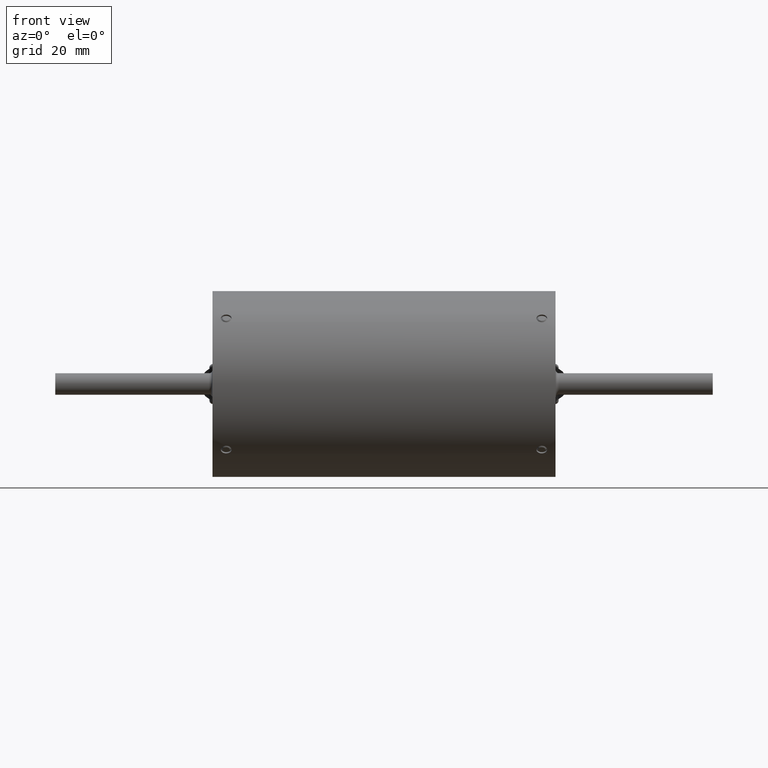
[diagram: clean part render]
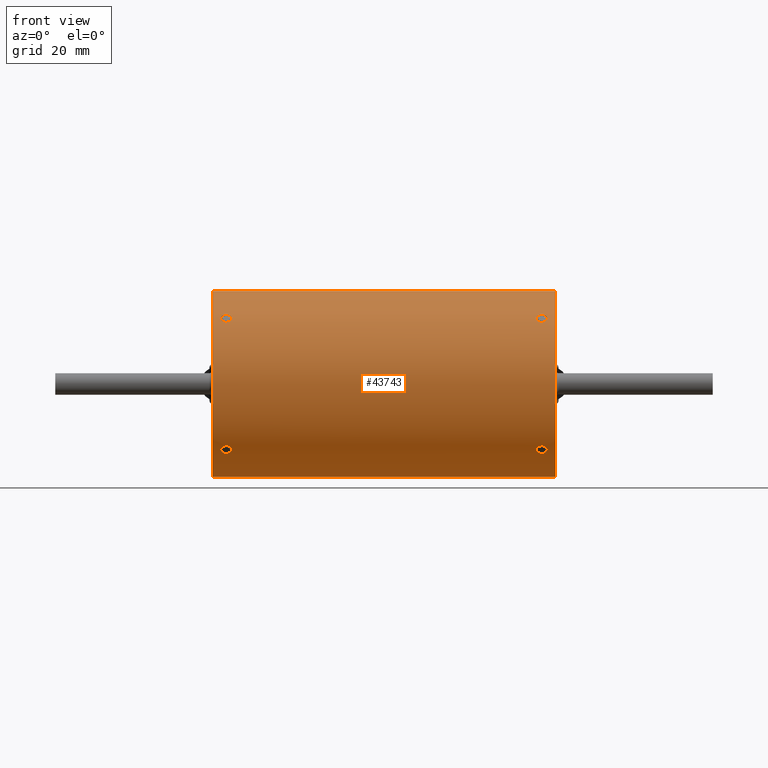
[diagram: same view with one face highlighted and labeled with its STEP entity id]
A machine part, front view. The second image highlights one B-rep face of the part: STEP entity #43743.
In plain terms, the highlighted cylindrical surface (bore or boss wall) has radius 20.6375 mm, axis along (-1, -0, -0).
Its self-contained STEP definition (entity closure, byte-faithful):
#162 = DIRECTION ( 'NONE',  ( 0.0000000000000000000, 0.0000000000000000000, 1.000000000000000000 ) ) ;
#361 = CARTESIAN_POINT ( 'NONE',  ( 2.595753959625226600, 0.8124997258721402500, 0.007369463581282807200 ) ) ;
#650 = CARTESIAN_POINT ( 'NONE',  ( 2.644579631145282900, 0.8105764993397319700, -0.05587942431614765400 ) ) ;
#930 = CARTESIAN_POINT ( 'NONE',  ( 2.708246298324295900, 0.8124997437302681200, -0.003768054466611750800 ) ) ;
#1365 = CARTESIAN_POINT ( 'NONE',  ( -0.1701349937785589800, 0.8107462396933474700, -0.05337404081643423700 ) ) ;
#1938 = CARTESIAN_POINT ( 'NONE',  ( 2.750000000000000000, 0.0000000000000000000, 7.764378988395785700E-030 ) ) ;
#2032 = CARTESIAN_POINT ( 'NONE',  ( -0.1761277402550023900, 0.5832112790651347000, 0.5657329252239211600 ) ) ;
#2098 = CARTESIAN_POINT ( 'NONE',  ( -0.1299999999999999800, -0.6070293364834783400, 0.5400663243051062600 ) ) ;
#2317 = CARTESIAN_POINT ( 'NONE',  ( -0.08389611841930932900, 0.5832719045279103300, 0.5656703463929490000 ) ) ;
#2377 = CARTESIAN_POINT ( 'NONE',  ( 2.629999999999999900, 0.6070293364834821200, -0.5400663243051018200 ) ) ;
#3036 = CARTESIAN_POINT ( 'NONE',  ( 2.583897500763709500, -0.5832636695510399200, 0.5656785453590068600 ) ) ;
#3309 = CARTESIAN_POINT ( 'NONE',  ( 2.659079301247605300, -0.5471261665832846100, 0.6006898211597697700 ) ) ;
#3364 = CARTESIAN_POINT ( 'NONE',  ( 2.623742239736963200, 0.6070293364834820100, -0.5400663243051017100 ) ) ;
#3535 = VERTEX_POINT ( 'NONE', #2098 ) ;
#3545 = EDGE_CURVE ( 'NONE', #66155, #66155, #55518, .T. ) ;
#3603 = CARTESIAN_POINT ( 'NONE',  ( 2.629999999999999400, -0.6070293364834783400, 0.5400663243051061500 ) ) ;
#3656 = CARTESIAN_POINT ( 'NONE',  ( 2.583897500763709500, 0.5832636695510435800, -0.5656785453590026400 ) ) ;
#3818 = CARTESIAN_POINT ( 'NONE',  ( 2.592148420942989300, 0.5535793970949891600, 0.5947480229792374600 ) ) ;
#3944 = CARTESIAN_POINT ( 'NONE',  ( 2.659079301247605300, 0.5471261665832891600, -0.6006898211597661000 ) ) ;
#4005 = ORIENTED_EDGE ( 'NONE', *, *, #51884, .T. ) ;
#4115 = CARTESIAN_POINT ( 'NONE',  ( 2.642393875219595200, 0.6062078163839945700, 0.5409934422598049500 ) ) ;
#4230 = CARTESIAN_POINT ( 'NONE',  ( 2.629999999999999000, 0.6070293364834821200, -0.5400663243051018200 ) ) ;
#4391 = CARTESIAN_POINT ( 'NONE',  ( 2.642474456311197300, 0.5410097238166782200, 0.6061933244686390500 ) ) ;
#4471 = CARTESIAN_POINT ( 'NONE',  ( -0.1300000000000000000, 0.6070293364834821200, -0.5400663243051018200 ) ) ;
#4515 = CARTESIAN_POINT ( 'NONE',  ( 2.583872259744999700, -0.5832112790651345900, -0.5657329252239216000 ) ) ;
#4567 = CARTESIAN_POINT ( 'NONE',  ( -0.1713864559505219600, -0.5574440097199302400, 0.5911389978157182100 ) ) ;
#4766 = CARTESIAN_POINT ( 'NONE',  ( -0.1538695845530263200, 0.5445343109252623900, -0.6030292749085092200 ) ) ;
#4807 = CARTESIAN_POINT ( 'NONE',  ( 2.676103881580690600, -0.5832719045279105600, -0.5656703463929486600 ) ) ;
#4868 = CARTESIAN_POINT ( 'NONE',  ( -0.08265626676958068300, -0.5700723275271159000, 0.5789756754191050000 ) ) ;
#5053 = CARTESIAN_POINT ( 'NONE',  ( -0.08861633935093166100, 0.5911440358451716100, -0.5574387563723652800 ) ) ;
#5525 = EDGE_LOOP ( 'NONE', ( #31936 ) ) ;
#6412 = CARTESIAN_POINT ( 'NONE',  ( -0.1713864559505219900, -0.5911389978157202100, -0.5574440097199282500 ) ) ;
#6716 = CARTESIAN_POINT ( 'NONE',  ( -0.08265626676958071100, -0.5789756754191068800, -0.5700723275271137900 ) ) ;
#6801 = CARTESIAN_POINT ( 'NONE',  ( 2.651999999999999200, 0.8105505459254223100, 0.05625000000000031400 ) ) ;
#7077 = CARTESIAN_POINT ( 'NONE',  ( 2.596113304631768600, 0.8124746135288695200, -0.007366747040115401300 ) ) ;
#7361 = CARTESIAN_POINT ( 'NONE',  ( 2.659322480166834700, 0.8105503626171515200, -0.05625264143339565200 ) ) ;
#7635 = CARTESIAN_POINT ( 'NONE',  ( 2.706801845933591200, 0.8123961534121482100, 0.01467271644329746200 ) ) ;
#8606 = DIRECTION ( 'NONE',  ( 0.0000000000000000000, 0.0000000000000000000, -1.000000000000000000 ) ) ;
#8607 = CARTESIAN_POINT ( 'NONE',  ( -0.1520000000000001900, 0.8105505459254223100, 0.05625000000000007800 ) ) ;
#8707 = CARTESIAN_POINT ( 'NONE',  ( -0.1679155668264365200, 0.5947022263198601400, 0.5536290274329783700 ) ) ;
#8971 = CARTESIAN_POINT ( 'NONE',  ( -0.08264378050201187700, 0.5701397495996897200, 0.5789092824144340700 ) ) ;
#9637 = CARTESIAN_POINT ( 'NONE',  ( 2.582646694254766100, -0.5701742948643557800, 0.5788744970100936400 ) ) ;
#9930 = CARTESIAN_POINT ( 'NONE',  ( 2.671344120360224000, -0.5573911578048654800, 0.5911887622417105700 ) ) ;
#10026 = FACE_BOUND ( 'NONE', #48580, .T. ) ;
#10278 = CARTESIAN_POINT ( 'NONE',  ( 2.582646694254765700, 0.5701742948643600000, -0.5788744970100895300 ) ) ;
#10449 = CARTESIAN_POINT ( 'NONE',  ( 2.583897500763709500, 0.5656785453590087400, 0.5832636695510378100 ) ) ;
#10561 = CARTESIAN_POINT ( 'NONE',  ( 2.671344120360224000, 0.5573911578048699200, -0.5911887622417069100 ) ) ;
#10718 = CARTESIAN_POINT ( 'NONE',  ( 2.659079301247605300, 0.6006898211597718800, 0.5471261665832827200 ) ) ;
#10885 = CARTESIAN_POINT ( 'NONE',  ( -0.1299999999999999800, -0.6070293364834783400, 0.5400663243051061500 ) ) ;
#10999 = CARTESIAN_POINT ( 'NONE',  ( 2.629999999999999000, 0.5400663243051084800, 0.6070293364834764600 ) ) ;
#11077 = CARTESIAN_POINT ( 'NONE',  ( -0.1538659023265115100, 0.6030303882540711800, -0.5445330723113459600 ) ) ;
#11126 = CARTESIAN_POINT ( 'NONE',  ( 2.592084433173565300, -0.5947022263198598100, -0.5536290274329788200 ) ) ;
#11178 = CARTESIAN_POINT ( 'NONE',  ( -0.1590800102466981000, -0.5471174658890801700, 0.6006981908789930100 ) ) ;
#11376 = CARTESIAN_POINT ( 'NONE',  ( -0.1361976685772201800, 0.5400679837262955000, -0.6070278601174199400 ) ) ;
#11420 = CARTESIAN_POINT ( 'NONE',  ( 2.677356219497988300, -0.5701397495996899400, -0.5789092824144336200 ) ) ;
#11475 = CARTESIAN_POINT ( 'NONE',  ( -0.08386831478681411300, -0.5832043186508149000, 0.5657401885391611900 ) ) ;
#11642 = CARTESIAN_POINT ( 'NONE',  ( -0.1008581011056976500, 0.6006580577466481600, -0.5471611322476539500 ) ) ;
#12680 = CARTESIAN_POINT ( 'NONE',  ( -0.1300000000000000000, -0.5400663243051082600, -0.6070293364834765700 ) ) ;
#12967 = CARTESIAN_POINT ( 'NONE',  ( -0.1590800102466981600, -0.6006981908789945600, -0.5471174658890782800 ) ) ;
#13251 = CARTESIAN_POINT ( 'NONE',  ( -0.08386831478681407200, -0.5657401885391630800, -0.5832043186508130100 ) ) ;
#13338 = CARTESIAN_POINT ( 'NONE',  ( 2.637437192628433500, 0.8106733864475287300, 0.05445570389347583600 ) ) ;
#13629 = CARTESIAN_POINT ( 'NONE',  ( 2.598610448825378500, 0.8123057654045428000, -0.01808869215161151800 ) ) ;
#13920 = CARTESIAN_POINT ( 'NONE',  ( 2.680266776396474300, 0.8110150316726084700, -0.04918069826484095000 ) ) ;
#14203 = CARTESIAN_POINT ( 'NONE',  ( 2.700846275161451300, 0.8120184791651857700, 0.02813534715328226300 ) ) ;
#15311 = CARTESIAN_POINT ( 'NONE',  ( -0.1538695845530263500, 0.6030292749085148800, 0.5445343109252561700 ) ) ;
#15588 = CARTESIAN_POINT ( 'NONE',  ( -0.08861633935093166100, 0.5574387563723716100, 0.5911440358451658400 ) ) ;
#16218 = CARTESIAN_POINT ( 'NONE',  ( -0.1299999999999999800, 0.5400663243051082600, 0.6070293364834764600 ) ) ;
#16270 = CARTESIAN_POINT ( 'NONE',  ( 2.588613544049476600, -0.5574440097199303600, 0.5911389978157178800 ) ) ;
#16551 = CARTESIAN_POINT ( 'NONE',  ( 2.677343733230420400, -0.5700723275271155600, 0.5789756754191048800 ) ) ;
#16880 = CARTESIAN_POINT ( 'NONE',  ( 2.588613544049477100, 0.5574440097199344600, -0.5911389978157140000 ) ) ;
#16900 = VERTEX_POINT ( 'NONE', #74426 ) ;
#17038 = CARTESIAN_POINT ( 'NONE',  ( 2.582646694254765700, 0.5788744970100957500, 0.5701742948643536700 ) ) ;
#17159 = CARTESIAN_POINT ( 'NONE',  ( 2.677343733230420400, 0.5700723275271196700, -0.5789756754191010000 ) ) ;
#17320 = CARTESIAN_POINT ( 'NONE',  ( 2.671344120360224000, 0.5911887622417125700, 0.5573911578048637000 ) ) ;
#17477 = CARTESIAN_POINT ( 'NONE',  ( -0.1423981732567065300, -0.6062105857736703700, 0.5409904266201329700 ) ) ;
#17659 = CARTESIAN_POINT ( 'NONE',  ( -0.1678515790570105400, 0.5947480229792435600, -0.5535793970949830500 ) ) ;
#17698 = CARTESIAN_POINT ( 'NONE',  ( 2.606130415446974000, -0.6030292749085148800, -0.5445343109252561700 ) ) ;
#17748 = CARTESIAN_POINT ( 'NONE',  ( -0.1423962694957802400, -0.5409897374308964000, 0.6062112059059798800 ) ) ;
#17929 = CARTESIAN_POINT ( 'NONE',  ( -0.1176061247804051500, 0.5409934422598113900, -0.6062078163839888000 ) ) ;
#17970 = CARTESIAN_POINT ( 'NONE',  ( 2.671383660649068400, -0.5574387563723716100, -0.5911440358451655100 ) ) ;
#18028 = CARTESIAN_POINT ( 'NONE',  ( -0.09212568097719467400, -0.5947283477971482300, 0.5536005774066576900 ) ) ;
#18202 = CARTESIAN_POINT ( 'NONE',  ( -0.1175255436888030800, 0.6061933244686444900, -0.5410097238166716700 ) ) ;
#19249 = CARTESIAN_POINT ( 'NONE',  ( -0.1423981732567064500, -0.5409904266201350800, -0.6062105857736681500 ) ) ;
#19404 = CIRCLE ( 'NONE', #69259, 0.8125000000000000000 ) ;
#19535 = CARTESIAN_POINT ( 'NONE',  ( -0.1423962694957802700, -0.6062112059059816500, -0.5409897374308945100 ) ) ;
#19836 = CARTESIAN_POINT ( 'NONE',  ( -0.09212568097719466000, -0.5536005774066595800, -0.5947283477971465600 ) ) ;
#19923 = CARTESIAN_POINT ( 'NONE',  ( 2.627052940950715500, 0.8109272177565431900, 0.05054996625941546300 ) ) ;
#19925 = VERTEX_POINT ( 'NONE', #16218 ) ;
#20208 = CARTESIAN_POINT ( 'NONE',  ( 2.603187752026922200, 0.8120164373367649800, -0.02819319159906399200 ) ) ;
#20505 = CARTESIAN_POINT ( 'NONE',  ( 2.694331751986395900, 0.8116510606599923700, -0.03722274126212533200 ) ) ;
#20790 = CARTESIAN_POINT ( 'NONE',  ( 2.694399262698429000, 0.8116545925775892100, 0.03714610869399726000 ) ) ;
#21107 = CARTESIAN_POINT ( 'NONE',  ( 2.629999999999999900, 0.5400663243051082600, 0.6070293364834764600 ) ) ;
#21605 = CARTESIAN_POINT ( 'NONE',  ( -0.1538659023265114800, 0.5445330723113522800, 0.6030303882540656300 ) ) ;
#21884 = CARTESIAN_POINT ( 'NONE',  ( -0.1361976685772201000, 0.6070278601174249300, 0.5400679837262889500 ) ) ;
#22170 = CARTESIAN_POINT ( 'NONE',  ( -0.1008581011056976800, 0.5471611322476601600, 0.6006580577466423800 ) ) ;
#22458 = B_SPLINE_CURVE_WITH_KNOTS ( 'NONE', 3,
 ( #54465, #60712, #60986, #21605, #67543, #28219, #74092, #34866, #80603, #41489, #2032, #48098, #8707, #54736, #15311, #61254, #21884, #67821, #28499, #74366, #35143, #80880, #41753, #2317, #48393, #8971, #55020, #15588, #61541, #22170, #68104, #28785, #74646, #35419 ),
 .UNSPECIFIED., .T., .F.,
 ( 4, 2, 2, 2, 2, 2, 2, 2, 2, 2, 2, 2, 2, 2, 2, 2, 4 ),
 ( 0.0000000000000000000, 0.0004700654975709993600, 0.0009401309951419987100, 0.001410196492712998100, 0.001880261990283997400, 0.002350327487854996600, 0.002820392985425996100, 0.003290458482996995300, 0.003760523980567994800, 0.004230589478138995300, 0.004700654975709996600, 0.005170720473280997900, 0.005640785970851998300, 0.006110851468422999700, 0.006580916965994001000, 0.007050982463565001400, 0.007521047961136002700 ),
 .UNSPECIFIED. ) ;
#22849 = CARTESIAN_POINT ( 'NONE',  ( 2.600919989753302200, -0.5471174658890800600, 0.6006981908789926800 ) ) ;
#23148 = CARTESIAN_POINT ( 'NONE',  ( 2.676131685213186900, -0.5832043186508143500, 0.5657401885391613000 ) ) ;
#23203 = CARTESIAN_POINT ( 'NONE',  ( 2.629999999999999000, 0.6070293364834821200, -0.5400663243051018200 ) ) ;
#23502 = CARTESIAN_POINT ( 'NONE',  ( 2.600919989753302200, 0.5471174658890845000, -0.6006981908789886800 ) ) ;
#23621 = B_SPLINE_CURVE_WITH_KNOTS ( 'NONE', 3,
 ( #23203, #3364, #29828, #75643, #36436, #82202, #43056, #3656, #49716, #10278, #56328, #16880, #62833, #23502, #69361, #30100, #75929, #36728, #82503, #43345, #3944, #50003, #10561, #56620, #17159, #63112, #23793, #69623, #30404, #76196, #37011, #82799, #43628, #4230 ),
 .UNSPECIFIED., .T., .F.,
 ( 4, 2, 2, 2, 2, 2, 2, 2, 2, 2, 2, 2, 2, 2, 2, 2, 4 ),
 ( 0.0000000000000000000, 0.0004700654975709995700, 0.0009401309951419991500, 0.001410196492712998700, 0.001880261990283998300, 0.002350327487854997900, 0.002820392985425997400, 0.003290458482996997000, 0.003760523980567996600, 0.004230589478138996200, 0.004700654975709995700, 0.005170720473280995300, 0.005640785970851994900, 0.006110851468422994400, 0.006580916965993994000, 0.007050982463564993600, 0.007521047961135993200 ),
 .UNSPECIFIED. ) ;
#23678 = CARTESIAN_POINT ( 'NONE',  ( 2.588613544049477100, 0.5911389978157197700, 0.5574440097199283600 ) ) ;
#23717 = ORIENTED_EDGE ( 'NONE', *, *, #74710, .T. ) ;
#23745 = CARTESIAN_POINT ( 'NONE',  ( -0.1362577602630357400, 0.6070293364834821200, -0.5400663243051018200 ) ) ;
#23767 = AXIS2_PLACEMENT_3D ( 'NONE', #1938, #48006, #8606 ) ;
#23793 = CARTESIAN_POINT ( 'NONE',  ( 2.676131685213186900, 0.5832043186508184500, -0.5657401885391572000 ) ) ;
#23956 = CARTESIAN_POINT ( 'NONE',  ( 2.677343733230420400, 0.5789756754191067700, 0.5700723275271135600 ) ) ;
#24062 = CARTESIAN_POINT ( 'NONE',  ( 2.606134097673487000, -0.5445330723113521700, -0.6030303882540654100 ) ) ;
#24117 = CARTESIAN_POINT ( 'NONE',  ( -0.1591177061275198000, -0.6006702292020033000, 0.5471477272877738300 ) ) ;
#24299 = CARTESIAN_POINT ( 'NONE',  ( -0.1761024992362898200, 0.5832636695510438100, -0.5656785453590028600 ) ) ;
#24342 = CARTESIAN_POINT ( 'NONE',  ( 2.623802331422779000, -0.6070278601174252700, -0.5400679837262891700 ) ) ;
#24394 = CARTESIAN_POINT ( 'NONE',  ( -0.1238362586174798900, -0.5400646694321485900, 0.6070308088030326200 ) ) ;
#24581 = CARTESIAN_POINT ( 'NONE',  ( -0.1009206987523942800, 0.5471261665832890500, -0.6006898211597657700 ) ) ;
#24624 = CARTESIAN_POINT ( 'NONE',  ( 2.659141898894302100, -0.5471611322476602800, -0.6006580577466419400 ) ) ;
#24678 = CARTESIAN_POINT ( 'NONE',  ( -0.1061345239537511400, -0.6030265871689801700, 0.5445372375346533300 ) ) ;
#24849 = CARTESIAN_POINT ( 'NONE',  ( -0.1300000000000000000, 0.6070293364834821200, -0.5400663243051018200 ) ) ;
#25436 = FACE_OUTER_BOUND ( 'NONE', #75480, .T. ) ;
#25882 = CARTESIAN_POINT ( 'NONE',  ( -0.1591177061275197700, -0.5471477272877759400, -0.6006702292020016400 ) ) ;
#26187 = CARTESIAN_POINT ( 'NONE',  ( -0.1238362586174799200, -0.6070308088030343900, -0.5400646694321464800 ) ) ;
#26470 = CARTESIAN_POINT ( 'NONE',  ( -0.1061345239537511100, -0.5445372375346554400, -0.6030265871689783900 ) ) ;
#26560 = CARTESIAN_POINT ( 'NONE',  ( 2.617708855844081800, 0.8112698315935345000, 0.04474024690145821100 ) ) ;
#26838 = CARTESIAN_POINT ( 'NONE',  ( 2.609582145601002900, 0.8116554638459090300, -0.03712915442170732600 ) ) ;
#27124 = CARTESIAN_POINT ( 'NONE',  ( 2.700798202629482300, 0.8120155693781469000, -0.02821917952881794800 ) ) ;
#27240 = EDGE_LOOP ( 'NONE', ( #4005 ) ) ;
#27412 = CARTESIAN_POINT ( 'NONE',  ( 2.680352268580480600, 0.8110180610084852800, 0.04913138436573388800 ) ) ;
#27518 = FACE_BOUND ( 'NONE', #58932, .T. ) ;
#27731 = CARTESIAN_POINT ( 'NONE',  ( 2.652000000000000100, 0.8105505459254223100, 0.05625000000000032800 ) ) ;
#28219 = CARTESIAN_POINT ( 'NONE',  ( -0.1678515790570104200, 0.5535793970949891600, 0.5947480229792377900 ) ) ;
#28499 = CARTESIAN_POINT ( 'NONE',  ( -0.1176061247804051200, 0.6062078163839943500, 0.5409934422598051700 ) ) ;
#28785 = CARTESIAN_POINT ( 'NONE',  ( -0.1175255436888030700, 0.5410097238166781100, 0.6061933244686390500 ) ) ;
#29186 = CARTESIAN_POINT ( 'NONE',  ( 2.617601826743294300, -0.6062105857736701500, 0.5409904266201328600 ) ) ;
#29478 = CARTESIAN_POINT ( 'NONE',  ( 2.617603730504219700, -0.5409897374308964000, 0.6062112059059797700 ) ) ;
#29587 = FACE_BOUND ( 'NONE', #82551, .T. ) ;
#29775 = CARTESIAN_POINT ( 'NONE',  ( 2.667874319022805400, -0.5947283477971477800, 0.5536005774066580200 ) ) ;
#29828 = CARTESIAN_POINT ( 'NONE',  ( 2.617601826743293400, 0.6062105857736739300, -0.5409904266201286400 ) ) ;
#29992 = CARTESIAN_POINT ( 'NONE',  ( 2.629999999999999000, 0.5400663243051084800, 0.6070293364834764600 ) ) ;
#30100 = CARTESIAN_POINT ( 'NONE',  ( 2.617603730504219700, 0.5409897374309005100, -0.6062112059059762100 ) ) ;
#30281 = CARTESIAN_POINT ( 'NONE',  ( 2.600919989753302200, 0.6006981908789945600, 0.5471174658890779500 ) ) ;
#30404 = CARTESIAN_POINT ( 'NONE',  ( 2.667874319022805400, 0.5947283477971517800, -0.5536005774066535800 ) ) ;
#30574 = CARTESIAN_POINT ( 'NONE',  ( 2.676131685213185600, 0.5657401885391634100, 0.5832043186508124600 ) ) ;
#30575 = EDGE_CURVE ( 'NONE', #68287, #68287, #81342, .T. ) ;
#30685 = CARTESIAN_POINT ( 'NONE',  ( 2.592148420942989300, -0.5535793970949891600, -0.5947480229792374600 ) ) ;
#30693 = EDGE_CURVE ( 'NONE', #50964, #50964, #59988, .T. ) ;
#30744 = CARTESIAN_POINT ( 'NONE',  ( -0.1713791498430506700, -0.5911409576172976800, 0.5574415602777850200 ) ) ;
#30942 = CARTESIAN_POINT ( 'NONE',  ( -0.1773533057452335600, 0.5701742948643597800, -0.5788744970100896400 ) ) ;
#30980 = CARTESIAN_POINT ( 'NONE',  ( 2.642393875219595200, -0.6062078163839945700, -0.5409934422598049500 ) ) ;
#31041 = CARTESIAN_POINT ( 'NONE',  ( -0.1062064959964468500, -0.5445063925285538200, 0.6030544002896456300 ) ) ;
#31231 = CARTESIAN_POINT ( 'NONE',  ( -0.08865587963977615600, 0.5573911578048699200, -0.5911887622417065800 ) ) ;
#31282 = CARTESIAN_POINT ( 'NONE',  ( 2.642474456311197300, -0.5410097238166782200, -0.6061933244686390500 ) ) ;
#31332 = CARTESIAN_POINT ( 'NONE',  ( -0.1237422397369642900, -0.6070293364834784500, 0.5400663243051061500 ) ) ;
#31877 = EDGE_CURVE ( 'NONE', #33428, #33428, #71895, .T. ) ;
#31936 = ORIENTED_EDGE ( 'NONE', *, *, #30575, .T. ) ;
#32376 = VERTEX_POINT ( 'NONE', #2377 ) ;
#32576 = CARTESIAN_POINT ( 'NONE',  ( -0.1713791498430506700, -0.5574415602777871300, -0.5911409576172956800 ) ) ;
#32721 = CARTESIAN_POINT ( 'NONE',  ( -0.2500000000000000600, 0.0000000000000000000, 7.764378988395785700E-030 ) ) ;
#32852 = CARTESIAN_POINT ( 'NONE',  ( -0.1062064959964469500, -0.6030544002896476300, -0.5445063925285516000 ) ) ;
#33138 = CARTESIAN_POINT ( 'NONE',  ( -0.1237422397369642700, -0.5400663243051083700, -0.6070293364834765700 ) ) ;
#33216 = CARTESIAN_POINT ( 'NONE',  ( 2.607034244403565900, 0.8117803053514164300, 0.03458276899529919700 ) ) ;
#33428 = VERTEX_POINT ( 'NONE', #27731 ) ;
#33500 = CARTESIAN_POINT ( 'NONE',  ( 2.623643624394521400, 0.8110177989709573800, -0.04913647720596058700 ) ) ;
#33779 = CARTESIAN_POINT ( 'NONE',  ( 2.705355887950044600, 0.8123035439807060300, -0.01818739679120771900 ) ) ;
#34061 = CARTESIAN_POINT ( 'NONE',  ( 2.659434675081894900, 0.8105505459254224200, 0.05625000000000032100 ) ) ;
#34866 = CARTESIAN_POINT ( 'NONE',  ( -0.1761024992362898200, 0.5656785453590089700, 0.5832636695510377000 ) ) ;
#35143 = CARTESIAN_POINT ( 'NONE',  ( -0.1009206987523942500, 0.6006898211597715400, 0.5471261665832828400 ) ) ;
#35419 = CARTESIAN_POINT ( 'NONE',  ( -0.1300000000000000000, 0.5400663243051082600, 0.6070293364834765700 ) ) ;
#35774 = CARTESIAN_POINT ( 'NONE',  ( 2.629999999999999900, -0.5400663243051082600, -0.6070293364834764600 ) ) ;
#35817 = CARTESIAN_POINT ( 'NONE',  ( 2.600882293872480000, -0.6006702292020038600, 0.5471477272877738300 ) ) ;
#36103 = CARTESIAN_POINT ( 'NONE',  ( 2.636163741382520100, -0.5400646694321483700, 0.6070308088030326200 ) ) ;
#36263 = CARTESIAN_POINT ( 'NONE',  ( -0.2064514741905313900, 0.8123771525290620600, -0.01458179137185871600 ) ) ;
#36380 = CARTESIAN_POINT ( 'NONE',  ( 2.653865476046249700, -0.6030265871689796100, 0.5445372375346536600 ) ) ;
#36436 = CARTESIAN_POINT ( 'NONE',  ( 2.600882293872480000, 0.6006702292020074100, -0.5471477272877699500 ) ) ;
#36446 = CARTESIAN_POINT ( 'NONE',  ( -0.2053895511746234000, 0.8123057654045428000, -0.01808869215161142800 ) ) ;
#36563 = CARTESIAN_POINT ( 'NONE',  ( -0.2082460403747724000, 0.8124997258721393700, 0.007369463581282743900 ) ) ;
#36605 = CARTESIAN_POINT ( 'NONE',  ( 2.617601826743293400, 0.5409904266201350800, 0.6062105857736682600 ) ) ;
#36637 = CARTESIAN_POINT ( 'NONE',  ( -0.2078866953682312300, 0.8124746135288695200, -0.007366747040115458600 ) ) ;
#36728 = CARTESIAN_POINT ( 'NONE',  ( 2.636163741382520100, 0.5400646694321527000, -0.6070308088030285100 ) ) ;
#36899 = CARTESIAN_POINT ( 'NONE',  ( 2.617603730504219700, 0.6062112059059816500, 0.5409897374308942900 ) ) ;
#37011 = CARTESIAN_POINT ( 'NONE',  ( 2.653865476046248800, 0.6030265871689838300, -0.5445372375346494400 ) ) ;
#37185 = CARTESIAN_POINT ( 'NONE',  ( 2.667874319022805800, 0.5536005774066599100, 0.5947283477971460100 ) ) ;
#37291 = CARTESIAN_POINT ( 'NONE',  ( 2.583897500763709500, -0.5656785453590087400, -0.5832636695510378100 ) ) ;
#37323 = CARTESIAN_POINT ( 'NONE',  ( -0.2067676561341618100, 0.8123938970719774000, 0.01477306959752787600 ) ) ;
#37345 = CARTESIAN_POINT ( 'NONE',  ( -0.1773466806390862600, -0.5789101322863280400, 0.5701381135733523100 ) ) ;
#37530 = CARTESIAN_POINT ( 'NONE',  ( -0.1713864559505220200, 0.5574440097199344600, -0.5911389978157143300 ) ) ;
#37571 = CARTESIAN_POINT ( 'NONE',  ( 2.659079301247605300, -0.6006898211597718800, -0.5471261665832827200 ) ) ;
#37594 = CARTESIAN_POINT ( 'NONE',  ( -0.1969657555964340600, 0.8117803053514162100, 0.03458276899529882900 ) ) ;
#37627 = CARTESIAN_POINT ( 'NONE',  ( -0.09218117496130365200, -0.5535486105426369300, 0.5947766296446028700 ) ) ;
#37823 = CARTESIAN_POINT ( 'NONE',  ( -0.08265626676958072500, 0.5700723275271200000, -0.5789756754191007800 ) ) ;
#37866 = CARTESIAN_POINT ( 'NONE',  ( 2.629999999999999000, -0.5400663243051084800, -0.6070293364834764600 ) ) ;
#37979 = CARTESIAN_POINT ( 'NONE',  ( -0.2011562829170772100, 0.8120349056485125500, 0.02830900198769723300 ) ) ;
#38061 = CARTESIAN_POINT ( 'NONE',  ( -0.1862911441559187100, 0.8112698315935340500, 0.04474024690145792000 ) ) ;
#38435 = CARTESIAN_POINT ( 'NONE',  ( -0.1801774648538476400, 0.8110344176493803300, 0.04882215413862438200 ) ) ;
#38452 = CARTESIAN_POINT ( 'NONE',  ( -0.2082519675831701900, 0.8125001362172767900, -0.003639303621721996800 ) ) ;
#38718 = CARTESIAN_POINT ( 'NONE',  ( -0.1891849375326745700, 0.8113989132660517400, 0.04236506895575911600 ) ) ;
#38733 = CARTESIAN_POINT ( 'NONE',  ( -0.1665628073715660400, 0.8106733864475287300, 0.05445570389347555900 ) ) ;
#39106 = CARTESIAN_POINT ( 'NONE',  ( -0.1593723330190687500, 0.8105761009491382300, 0.05588512996255064900 ) ) ;
#39142 = CARTESIAN_POINT ( 'NONE',  ( -0.1773466806390862600, -0.5701381135733542000, -0.5789101322863258200 ) ) ;
#39301 = DIRECTION ( 'NONE',  ( 0.0000000000000000000, 0.0000000000000000000, -1.000000000000000000 ) ) ;
#39436 = CARTESIAN_POINT ( 'NONE',  ( -0.09218117496130366600, -0.5947766296446047600, -0.5535486105426344900 ) ) ;
#39519 = VERTEX_POINT ( 'NONE', #81496 ) ;
#39574 = CARTESIAN_POINT ( 'NONE',  ( -0.1520000000000001400, 0.8105505459254221900, 0.05625000000000008500 ) ) ;
#39809 = CARTESIAN_POINT ( 'NONE',  ( 2.597232343865838000, 0.8123938970719775100, 0.01477306959752802000 ) ) ;
#39923 = AXIS2_PLACEMENT_3D ( 'NONE', #78446, #52587, #162 ) ;
#40095 = CARTESIAN_POINT ( 'NONE',  ( 2.637371165331123800, 0.8106745353171546100, -0.05443867312926357900 ) ) ;
#40115 = ORIENTED_EDGE ( 'NONE', *, *, #3545, .T. ) ;
#40371 = CARTESIAN_POINT ( 'NONE',  ( 2.707878762246013900, 0.8124740675222970100, -0.007420800781397372100 ) ) ;
#40410 = ORIENTED_EDGE ( 'NONE', *, *, #74214, .T. ) ;
#40546 = CARTESIAN_POINT ( 'NONE',  ( -0.1769470590492842300, 0.8109272177565428600, 0.05054996625941533800 ) ) ;
#40772 = EDGE_CURVE ( 'NONE', #79411, #79411, #19404, .T. ) ;
#41091 = CARTESIAN_POINT ( 'NONE',  ( -0.1557173375409478000, 0.8105505459254221900, 0.05625000000000006400 ) ) ;
#41373 = CARTESIAN_POINT ( 'NONE',  ( -0.1701356147634513500, 0.8107462594832047800, 0.05337372313403093700 ) ) ;
#41489 = CARTESIAN_POINT ( 'NONE',  ( -0.1773533057452335900, 0.5788744970100958600, 0.5701742948643536700 ) ) ;
#41753 = CARTESIAN_POINT ( 'NONE',  ( -0.08865587963977621100, 0.5911887622417126800, 0.5573911578048637000 ) ) ;
#42422 = CARTESIAN_POINT ( 'NONE',  ( 2.588620850156949400, -0.5911409576172975700, 0.5574415602777851300 ) ) ;
#42715 = CARTESIAN_POINT ( 'NONE',  ( 2.653793504003553000, -0.5445063925285536000, 0.6030544002896458500 ) ) ;
#42962 = FACE_OUTER_BOUND ( 'NONE', #53802, .T. ) ;
#43004 = CARTESIAN_POINT ( 'NONE',  ( 2.636257760263035700, -0.6070293364834785700, 0.5400663243051062600 ) ) ;
#43056 = CARTESIAN_POINT ( 'NONE',  ( 2.588620850156949400, 0.5911409576173014500, -0.5574415602777809100 ) ) ;
#43116 = ORIENTED_EDGE ( 'NONE', *, *, #60750, .F. ) ;
#43222 = CARTESIAN_POINT ( 'NONE',  ( 2.600882293872480000, 0.5471477272877762800, 0.6006702292020017500 ) ) ;
#43345 = CARTESIAN_POINT ( 'NONE',  ( 2.653793504003553000, 0.5445063925285578100, -0.6030544002896418600 ) ) ;
#43506 = CARTESIAN_POINT ( 'NONE',  ( 2.636163741382520100, 0.6070308088030343900, 0.5400646694321463700 ) ) ;
#43628 = CARTESIAN_POINT ( 'NONE',  ( 2.636257760263035300, 0.6070293364834821200, -0.5400663243051021500 ) ) ;
#43743 = ADVANCED_FACE ( 'NONE', ( #47086, #29587, #64515, #79748, #62461, #45033, #27518, #10026, #77712, #60429, #42962, #25436 ), #67531, .T. ) ;
#43797 = CARTESIAN_POINT ( 'NONE',  ( 2.653865476046248800, 0.5445372375346555500, 0.6030265871689780600 ) ) ;
#43905 = CARTESIAN_POINT ( 'NONE',  ( 2.582646694254765700, -0.5788744970100957500, -0.5701742948643536700 ) ) ;
#43966 = CARTESIAN_POINT ( 'NONE',  ( -0.1761277402550024400, -0.5657329252239236000, 0.5832112790651329300 ) ) ;
#44158 = CARTESIAN_POINT ( 'NONE',  ( -0.1590800102466981300, 0.5471174658890842800, -0.6006981908789889000 ) ) ;
#44201 = CARTESIAN_POINT ( 'NONE',  ( 2.671344120360224000, -0.5911887622417125700, -0.5573911578048637000 ) ) ;
#44246 = CARTESIAN_POINT ( 'NONE',  ( -0.08389611841930928700, -0.5656703463929508800, 0.5832719045279083400 ) ) ;
#44314 = CARTESIAN_POINT ( 'NONE',  ( -0.1803563756054807600, 0.8110177989709582700, -0.04913647720596012200 ) ) ;
#44428 = CARTESIAN_POINT ( 'NONE',  ( -0.08386831478681408500, 0.5832043186508187900, -0.5657401885391570900 ) ) ;
#44884 = CARTESIAN_POINT ( 'NONE',  ( -0.1865452466314110600, 0.8112694262951351000, -0.04500924743557699300 ) ) ;
#45033 = FACE_BOUND ( 'NONE', #84503, .T. ) ;
#45471 = CARTESIAN_POINT ( 'NONE',  ( -0.1362577602630357100, -0.5400663243051082600, -0.6070293364834765700 ) ) ;
#45759 = CARTESIAN_POINT ( 'NONE',  ( -0.1761277402550023900, -0.5832112790651347000, -0.5657329252239211600 ) ) ;
#45840 = ORIENTED_EDGE ( 'NONE', *, *, #57793, .T. ) ;
#46037 = CARTESIAN_POINT ( 'NONE',  ( -0.08389611841930932900, -0.5832719045279103300, -0.5656703463929490000 ) ) ;
#46424 = CARTESIAN_POINT ( 'NONE',  ( 2.595748032416829200, 0.8125001362172767900, -0.003639303621721979000 ) ) ;
#46575 = B_SPLINE_CURVE_WITH_KNOTS ( 'NONE', 3,
 ( #56880, #50294, #63381, #24062, #69901, #30685, #76472, #37291, #83074, #43905, #4515, #50588, #11126, #57166, #17698, #63674, #24342, #70178, #30980, #76760, #37571, #83351, #44201, #4807, #50860, #11420, #57445, #17970, #63948, #24624, #70472, #31282, #77019, #37866 ),
 .UNSPECIFIED., .T., .F.,
 ( 4, 2, 2, 2, 2, 2, 2, 2, 2, 2, 2, 2, 2, 2, 2, 2, 4 ),
 ( 0.0000000000000000000, 0.0004700654975709996800, 0.0009401309951419993600, 0.001410196492712999200, 0.001880261990283998700, 0.002350327487854998300, 0.002820392985425998300, 0.003290458482996997900, 0.003760523980567997400, 0.004230589478138997000, 0.004700654975709996600, 0.005170720473280996200, 0.005640785970851996600, 0.006110851468422996200, 0.006580916965993995800, 0.007050982463564995300, 0.007521047961135994900 ),
 .UNSPECIFIED. ) ;
#46579 = ORIENTED_EDGE ( 'NONE', *, *, #79012, .T. ) ;
#46704 = CARTESIAN_POINT ( 'NONE',  ( 2.648308365435246600, 0.8105506379594738000, -0.05624867380878694600 ) ) ;
#46978 = CARTESIAN_POINT ( 'NONE',  ( 2.708257320706508600, 0.8125005068178956500, 0.007369098012709291200 ) ) ;
#47086 = FACE_BOUND ( 'NONE', #72836, .T. ) ;
#47144 = CARTESIAN_POINT ( 'NONE',  ( -0.1944178543989972500, 0.8116554638459090300, -0.03712915442170744400 ) ) ;
#47416 = CARTESIAN_POINT ( 'NONE',  ( -0.1967417211987653200, 0.8117819168771468500, -0.03428804440178549700 ) ) ;
#47702 = CARTESIAN_POINT ( 'NONE',  ( -0.2008122479730789200, 0.8120164373367649800, -0.02819319159906374600 ) ) ;
#48006 = DIRECTION ( 'NONE',  ( 1.000000000000000000, 0.0000000000000000000, 0.0000000000000000000 ) ) ;
#48098 = CARTESIAN_POINT ( 'NONE',  ( -0.1713864559505219900, 0.5911389978157202100, 0.5574440097199282500 ) ) ;
#48393 = CARTESIAN_POINT ( 'NONE',  ( -0.08265626676958071100, 0.5789756754191068800, 0.5700723275271137900 ) ) ;
#48574 = CARTESIAN_POINT ( 'NONE',  ( -0.2025729656188854100, 0.8121255058094909400, -0.02490020294886230800 ) ) ;
#48580 = EDGE_LOOP ( 'NONE', ( #45840 ) ) ;
#49093 = CARTESIAN_POINT ( 'NONE',  ( 2.582653319360913400, -0.5789101322863279300, 0.5701381135733523100 ) ) ;
#49382 = CARTESIAN_POINT ( 'NONE',  ( 2.667818825038696500, -0.5535486105426366000, 0.5947766296446030900 ) ) ;
#49543 = CARTESIAN_POINT ( 'NONE',  ( -0.1594203688547178300, 0.8105764993397321900, -0.05587942431614741800 ) ) ;
#49716 = CARTESIAN_POINT ( 'NONE',  ( 2.582653319360913400, 0.5789101322863320400, -0.5701381135733482000 ) ) ;
#49892 = CARTESIAN_POINT ( 'NONE',  ( 2.588620850156949400, 0.5574415602777871300, 0.5911409576172955700 ) ) ;
#50003 = CARTESIAN_POINT ( 'NONE',  ( 2.667818825038696500, 0.5535486105426404800, -0.5947766296445992100 ) ) ;
#50176 = CARTESIAN_POINT ( 'NONE',  ( 2.653793504003553000, 0.6030544002896475200, 0.5445063925285514900 ) ) ;
#50203 = CARTESIAN_POINT ( 'NONE',  ( -0.1446775198331651200, 0.8105503626171513000, -0.05625264143339547800 ) ) ;
#50213 = B_SPLINE_CURVE_WITH_KNOTS ( 'NONE', 3,
 ( #10885, #69676, #17477, #63439, #24117, #69948, #30744, #76528, #37345, #83131, #43966, #4567, #50640, #11178, #57221, #17748, #63719, #24394, #70232, #31041, #76804, #37627, #83408, #44246, #4868, #50913, #11475, #57493, #18028, #64003, #24678, #70529, #31332, #77070 ),
 .UNSPECIFIED., .T., .F.,
 ( 4, 2, 2, 2, 2, 2, 2, 2, 2, 2, 2, 2, 2, 2, 2, 2, 4 ),
 ( 0.0000000000000000000, 0.0004700654975710009800, 0.0009401309951420006600, 0.001410196492713000200, 0.001880261990284000000, 0.002350327487854999600, 0.002820392985425999200, 0.003290458482996999200, 0.003760523980568000100, 0.004230589478139001400, 0.004700654975710001800, 0.005170720473281003100, 0.005640785970852003500, 0.006110851468423004900, 0.006580916965994006200, 0.007050982463565006600, 0.007521047961136007000 ),
 .UNSPECIFIED. ) ;
#50294 = CARTESIAN_POINT ( 'NONE',  ( 2.623742239736963200, -0.5400663243051082600, -0.6070293364834764600 ) ) ;
#50473 = CARTESIAN_POINT ( 'NONE',  ( 2.636257760263035300, 0.5400663243051085900, 0.6070293364834764600 ) ) ;
#50544 = CARTESIAN_POINT ( 'NONE',  ( -0.1423981732567065100, 0.6062105857736737000, -0.5409904266201285300 ) ) ;
#50588 = CARTESIAN_POINT ( 'NONE',  ( 2.588613544049477100, -0.5911389978157197700, -0.5574440097199283600 ) ) ;
#50640 = CARTESIAN_POINT ( 'NONE',  ( -0.1679155668264364600, -0.5536290274329807000, 0.5947022263198582500 ) ) ;
#50778 = CARTESIAN_POINT ( 'NONE',  ( -0.1372755678013642700, 0.8106560182066410200, -0.05478086185971608300 ) ) ;
#50816 = CARTESIAN_POINT ( 'NONE',  ( -0.1423962694957803300, 0.5409897374309005100, -0.6062112059059759900 ) ) ;
#50860 = CARTESIAN_POINT ( 'NONE',  ( 2.677343733230420400, -0.5789756754191067700, -0.5700723275271135600 ) ) ;
#50913 = CARTESIAN_POINT ( 'NONE',  ( -0.08264378050201186300, -0.5789092824144359600, 0.5701397495996877200 ) ) ;
#50964 = VERTEX_POINT ( 'NONE', #67071 ) ;
#51039 = EDGE_LOOP ( 'NONE', ( #46579 ) ) ;
#51088 = CARTESIAN_POINT ( 'NONE',  ( -0.09212568097719459100, 0.5947283477971521100, -0.5536005774066534700 ) ) ;
#51131 = B_SPLINE_CURVE_WITH_KNOTS ( 'NONE', 3,
 ( #55417, #68485, #29186, #75040, #35817, #81546, #42422, #3036, #49093, #9637, #55707, #16270, #62219, #22849, #68747, #29478, #75320, #36103, #81860, #42715, #3309, #49382, #9930, #55989, #16551, #62499, #23148, #69028, #29775, #75600, #36380, #82155, #43004, #3603 ),
 .UNSPECIFIED., .T., .F.,
 ( 4, 2, 2, 2, 2, 2, 2, 2, 2, 2, 2, 2, 2, 2, 2, 2, 4 ),
 ( 0.0000000000000000000, 0.0004700654975709995700, 0.0009401309951419991500, 0.001410196492712998700, 0.001880261990283998300, 0.002350327487854997900, 0.002820392985425997400, 0.003290458482996997000, 0.003760523980567996600, 0.004230589478138996200, 0.004700654975709995700, 0.005170720473280995300, 0.005640785970851994900, 0.006110851468422994400, 0.006580916965993994000, 0.007050982463564993600, 0.007521047961135993200 ),
 .UNSPECIFIED. ) ;
#51246 = CARTESIAN_POINT ( 'NONE',  ( -0.1237332236035270400, 0.8110150316726084700, -0.04918069826484077600 ) ) ;
#51260 = CARTESIAN_POINT ( 'NONE',  ( -0.1174547404887456700, 0.8112697952171706900, -0.04499418094063809700 ) ) ;
#51331 = CARTESIAN_POINT ( 'NONE',  ( -0.1096682480136053900, 0.8116510606599920400, -0.03722274126212494300 ) ) ;
#51438 = CARTESIAN_POINT ( 'NONE',  ( -0.1072913117532614400, 0.8117800731339692700, -0.03433248998257485600 ) ) ;
#51597 = CARTESIAN_POINT ( 'NONE',  ( -0.1032017973705178100, 0.8120155693781470100, -0.02821917952881795200 ) ) ;
#51884 = EDGE_CURVE ( 'NONE', #3535, #3535, #50213, .T. ) ;
#51995 = CARTESIAN_POINT ( 'NONE',  ( -0.1014717544011373300, 0.8121227126413694800, -0.02499056977500579300 ) ) ;
#52275 = CARTESIAN_POINT ( 'NONE',  ( -0.09864411204995662800, 0.8123035439807055900, -0.01818739679120775700 ) ) ;
#52361 = CARTESIAN_POINT ( 'NONE',  ( -0.09755727475424287600, 0.8123765657983158500, -0.01461143463862019100 ) ) ;
#52415 = CARTESIAN_POINT ( 'NONE',  ( -0.1679155668264365200, -0.5947022263198601400, -0.5536290274329783700 ) ) ;
#52441 = CARTESIAN_POINT ( 'NONE',  ( -0.09612123775398663500, 0.8124740675222973400, -0.007420800781397379900 ) ) ;
#52587 = DIRECTION ( 'NONE',  ( -1.000000000000000000, -0.0000000000000000000, -0.0000000000000000000 ) ) ;
#52642 = CARTESIAN_POINT ( 'NONE',  ( -0.09575370167570505800, 0.8124997437302680100, -0.003768054466611691000 ) ) ;
#52691 = CARTESIAN_POINT ( 'NONE',  ( -0.08264378050201187700, -0.5701397495996897200, -0.5789092824144340700 ) ) ;
#52766 = CARTESIAN_POINT ( 'NONE',  ( 2.644627666980931700, 0.8105761009491382300, 0.05588512996255093300 ) ) ;
#53063 = CARTESIAN_POINT ( 'NONE',  ( 2.597548525809469500, 0.8123771525290619500, -0.01458179137185870700 ) ) ;
#53350 = CARTESIAN_POINT ( 'NONE',  ( 2.666724432198636800, 0.8106560182066414600, -0.05478086185971638200 ) ) ;
#53507 = CARTESIAN_POINT ( 'NONE',  ( -0.1556916345647542900, 0.8105506379594743500, -0.05624867380878668200 ) ) ;
#53628 = CARTESIAN_POINT ( 'NONE',  ( 2.702571869439736000, 0.8121254346121112900, 0.02490312485932188300 ) ) ;
#53797 = CARTESIAN_POINT ( 'NONE',  ( -0.09574267929349218600, 0.8125005068178955400, 0.007369098012709357100 ) ) ;
#53802 = EDGE_LOOP ( 'NONE', ( #43116 ) ) ;
#54072 = CARTESIAN_POINT ( 'NONE',  ( -0.09719815406641030300, 0.8123961534121479900, 0.01467271644329752600 ) ) ;
#54084 = CARTESIAN_POINT ( 'NONE',  ( -0.1014281305602649100, 0.8121254346121107300, 0.02490312485932183800 ) ) ;
#54119 = ORIENTED_EDGE ( 'NONE', *, *, #31877, .T. ) ;
#54362 = CARTESIAN_POINT ( 'NONE',  ( -0.1031537248385499500, 0.8120184791651856600, 0.02813534715328211100 ) ) ;
#54465 = CARTESIAN_POINT ( 'NONE',  ( -0.1300000000000000000, 0.5400663243051082600, 0.6070293364834765700 ) ) ;
#54640 = CARTESIAN_POINT ( 'NONE',  ( -0.1072277321284138300, 0.8117835967047860600, 0.03424909321746668500 ) ) ;
#54736 = CARTESIAN_POINT ( 'NONE',  ( -0.1590800102466981600, 0.6006981908789945600, 0.5471174658890782800 ) ) ;
#54816 = CARTESIAN_POINT ( 'NONE',  ( -0.1096007373015714400, 0.8116545925775891000, 0.03714610869399721800 ) ) ;
#54911 = CARTESIAN_POINT ( 'NONE',  ( -0.1173796521931447400, 0.8112730284447743400, 0.04493737299441005800 ) ) ;
#55020 = CARTESIAN_POINT ( 'NONE',  ( -0.08386831478681407200, 0.5657401885391630800, 0.5832043186508130100 ) ) ;
#55030 = CARTESIAN_POINT ( 'NONE',  ( -0.1236477314195208900, 0.8110180610084852800, 0.04913138436573361700 ) ) ;
#55081 = CARTESIAN_POINT ( 'NONE',  ( 2.750000000000000000, 0.0000000000000000000, -0.8125000000000000000 ) ) ;
#55293 = CARTESIAN_POINT ( 'NONE',  ( -0.1371792938567398000, 0.8106578177498117200, 0.05475482383103987000 ) ) ;
#55384 = CARTESIAN_POINT ( 'NONE',  ( -0.1445653249181050000, 0.8105505459254221900, 0.05625000000000010500 ) ) ;
#55413 = EDGE_CURVE ( 'NONE', #16900, #16900, #51131, .T. ) ;
#55417 = CARTESIAN_POINT ( 'NONE',  ( 2.629999999999999400, -0.6070293364834783400, 0.5400663243051061500 ) ) ;
#55481 = CARTESIAN_POINT ( 'NONE',  ( -0.1520000000000001400, 0.8105505459254221900, 0.05625000000000008500 ) ) ;
#55518 = B_SPLINE_CURVE_WITH_KNOTS ( 'NONE', 3,
 ( #39574, #41091, #39106, #38733, #41373, #40546, #38435, #38061, #38718, #37594, #37979, #37323, #36563, #38452, #36637, #36263, #36446, #48574, #47702, #47416, #47144, #44884, #44314, #1365, #64433, #49543, #53507, #50203, #50778, #51246, #51260, #51331, #51438, #51597, #51995, #52275, #52361, #52441, #52642, #53797, #54072, #54084, #54362, #54640, #54816, #54911, #55030, #55293, #55384, #55481 ),
 .UNSPECIFIED., .T., .F.,
 ( 4, 2, 2, 2, 2, 2, 2, 2, 2, 2, 2, 2, 2, 2, 2, 2, 2, 2, 2, 2, 2, 2, 2, 2, 4 ),
 ( 0.0000000000000000000, 0.0002792341193110087800, 0.0005584682386220175500, 0.0008377023579330262700, 0.001116936477244035100, 0.001675404715866052500, 0.002233872954488070200, 0.002513107073799078900, 0.002792341193110087200, 0.003071575312421095900, 0.003350809431732105100, 0.003909277670354121200, 0.004188511789665128200, 0.004467745908976134300, 0.005026214147598146600, 0.005584682386220158800, 0.005863916505531164900, 0.006143150624842170200, 0.006422384744153176300, 0.006701618863464181600, 0.007260087102086195500, 0.007539321221397200800, 0.007818555340708206000, 0.008377023579330218300, 0.008935491817952230500 ),
 .UNSPECIFIED. ) ;
#55707 = CARTESIAN_POINT ( 'NONE',  ( 2.583872259744999200, -0.5657329252239238200, 0.5832112790651327000 ) ) ;
#55989 = CARTESIAN_POINT ( 'NONE',  ( 2.676103881580690600, -0.5656703463929507700, 0.5832719045279082200 ) ) ;
#56328 = CARTESIAN_POINT ( 'NONE',  ( 2.583872259744999700, 0.5657329252239277100, -0.5832112790651286000 ) ) ;
#56497 = CARTESIAN_POINT ( 'NONE',  ( 2.582653319360913400, 0.5701381135733542000, 0.5789101322863259300 ) ) ;
#56536 = ORIENTED_EDGE ( 'NONE', *, *, #55413, .T. ) ;
#56620 = CARTESIAN_POINT ( 'NONE',  ( 2.676103881580690600, 0.5656703463929547700, -0.5832719045279044500 ) ) ;
#56783 = CARTESIAN_POINT ( 'NONE',  ( 2.667818825038696500, 0.5947766296446047600, 0.5535486105426343800 ) ) ;
#56880 = CARTESIAN_POINT ( 'NONE',  ( 2.629999999999999000, -0.5400663243051084800, -0.6070293364834764600 ) ) ;
#56939 = ORIENTED_EDGE ( 'NONE', *, *, #30693, .T. ) ;
#57053 = VERTEX_POINT ( 'NONE', #35774 ) ;
#57129 = CARTESIAN_POINT ( 'NONE',  ( -0.1591177061275199100, 0.6006702292020074100, -0.5471477272877696100 ) ) ;
#57166 = CARTESIAN_POINT ( 'NONE',  ( 2.600919989753302200, -0.6006981908789945600, -0.5471174658890779500 ) ) ;
#57221 = CARTESIAN_POINT ( 'NONE',  ( -0.1538695845530262400, -0.5445343109252582800, 0.6030292749085131000 ) ) ;
#57400 = CARTESIAN_POINT ( 'NONE',  ( -0.1238362586174799300, 0.5400646694321527000, -0.6070308088030288400 ) ) ;
#57445 = CARTESIAN_POINT ( 'NONE',  ( 2.676131685213185600, -0.5657401885391634100, -0.5832043186508124600 ) ) ;
#57493 = CARTESIAN_POINT ( 'NONE',  ( -0.08861633935093168900, -0.5911440358451676100, 0.5574387563723696100 ) ) ;
#57676 = CARTESIAN_POINT ( 'NONE',  ( -0.1061345239537511400, 0.6030265871689837200, -0.5445372375346490000 ) ) ;
#57793 = EDGE_CURVE ( 'NONE', #32376, #32376, #23621, .T. ) ;
#58932 = EDGE_LOOP ( 'NONE', ( #23717 ) ) ;
#59014 = CARTESIAN_POINT ( 'NONE',  ( -0.1538695845530263500, -0.6030292749085148800, -0.5445343109252561700 ) ) ;
#59278 = CARTESIAN_POINT ( 'NONE',  ( -0.08861633935093166100, -0.5574387563723716100, -0.5911440358451658400 ) ) ;
#59365 = CARTESIAN_POINT ( 'NONE',  ( 2.633864385236547500, 0.8107462594832048900, 0.05337372313403113100 ) ) ;
#59628 = CARTESIAN_POINT ( 'NONE',  ( 2.601427034381113700, 0.8121255058094907200, -0.02490020294886241200 ) ) ;
#59899 = CARTESIAN_POINT ( 'NONE',  ( 2.686545259511254400, 0.8112697952171709100, -0.04499418094063824300 ) ) ;
#59988 = B_SPLINE_CURVE_WITH_KNOTS ( 'NONE', 3,
 ( #12680, #45471, #19249, #65228, #25882, #71751, #32576, #78261, #39142, #84908, #45759, #6412, #52415, #12967, #59014, #19535, #65517, #26187, #72030, #32852, #78548, #39436, #85183, #46037, #6716, #52691, #13251, #59278, #19836, #65813, #26470, #72313, #33138, #78835 ),
 .UNSPECIFIED., .T., .F.,
 ( 4, 2, 2, 2, 2, 2, 2, 2, 2, 2, 2, 2, 2, 2, 2, 2, 4 ),
 ( 0.0000000000000000000, 0.0004700654975709993600, 0.0009401309951419987100, 0.001410196492712998100, 0.001880261990283997400, 0.002350327487854996600, 0.002820392985425996100, 0.003290458482996995300, 0.003760523980567994800, 0.004230589478138995300, 0.004700654975709996600, 0.005170720473280997900, 0.005640785970851998300, 0.006110851468422999700, 0.006580916965994001000, 0.007050982463565001400, 0.007521047961136002700 ),
 .UNSPECIFIED. ) ;
#60175 = CARTESIAN_POINT ( 'NONE',  ( 2.696772267871585500, 0.8117835967047858400, 0.03424909321746685100 ) ) ;
#60429 = FACE_BOUND ( 'NONE', #51039, .T. ) ;
#60712 = CARTESIAN_POINT ( 'NONE',  ( -0.1362577602630357100, 0.5400663243051082600, 0.6070293364834765700 ) ) ;
#60750 = EDGE_CURVE ( 'NONE', #65172, #65172, #81314, .T. ) ;
#60986 = CARTESIAN_POINT ( 'NONE',  ( -0.1423981732567064500, 0.5409904266201350800, 0.6062105857736681500 ) ) ;
#61254 = CARTESIAN_POINT ( 'NONE',  ( -0.1423962694957802700, 0.6062112059059816500, 0.5409897374308945100 ) ) ;
#61541 = CARTESIAN_POINT ( 'NONE',  ( -0.09212568097719466000, 0.5536005774066595800, 0.5947283477971465600 ) ) ;
#62219 = CARTESIAN_POINT ( 'NONE',  ( 2.592084433173565300, -0.5536290274329808100, 0.5947022263198578100 ) ) ;
#62461 = FACE_BOUND ( 'NONE', #77326, .T. ) ;
#62499 = CARTESIAN_POINT ( 'NONE',  ( 2.677356219497988300, -0.5789092824144356200, 0.5701397495996879400 ) ) ;
#62714 = CARTESIAN_POINT ( 'NONE',  ( 2.623742239736963200, 0.5400663243051082600, 0.6070293364834764600 ) ) ;
#62833 = CARTESIAN_POINT ( 'NONE',  ( 2.592084433173565300, 0.5536290274329849200, -0.5947022263198542500 ) ) ;
#62996 = CARTESIAN_POINT ( 'NONE',  ( 2.583872259744999700, 0.5832112790651345900, 0.5657329252239216000 ) ) ;
#63112 = CARTESIAN_POINT ( 'NONE',  ( 2.677356219497988300, 0.5789092824144396200, -0.5701397495996837200 ) ) ;
#63271 = CARTESIAN_POINT ( 'NONE',  ( 2.676103881580690600, 0.5832719045279105600, 0.5656703463929486600 ) ) ;
#63381 = CARTESIAN_POINT ( 'NONE',  ( 2.617601826743293400, -0.5409904266201350800, -0.6062105857736682600 ) ) ;
#63439 = CARTESIAN_POINT ( 'NONE',  ( -0.1538659023265114600, -0.6030303882540674100, 0.5445330723113501700 ) ) ;
#63631 = CARTESIAN_POINT ( 'NONE',  ( -0.1713791498430506400, 0.5911409576173011200, -0.5574415602777809100 ) ) ;
#63674 = CARTESIAN_POINT ( 'NONE',  ( 2.617603730504219700, -0.6062112059059816500, -0.5409897374308942900 ) ) ;
#63719 = CARTESIAN_POINT ( 'NONE',  ( -0.1361976685772200200, -0.5400679837262910600, 0.6070278601174233800 ) ) ;
#63903 = CARTESIAN_POINT ( 'NONE',  ( -0.1062064959964469600, 0.5445063925285578100, -0.6030544002896418600 ) ) ;
#63948 = CARTESIAN_POINT ( 'NONE',  ( 2.667874319022805800, -0.5536005774066599100, -0.5947283477971460100 ) ) ;
#64003 = CARTESIAN_POINT ( 'NONE',  ( -0.1008581011056977600, -0.6006580577466442700, 0.5471611322476580600 ) ) ;
#64183 = CARTESIAN_POINT ( 'NONE',  ( -0.1237422397369643000, 0.6070293364834820100, -0.5400663243051018200 ) ) ;
#64433 = CARTESIAN_POINT ( 'NONE',  ( -0.1666288346688770700, 0.8106745353171543900, -0.05443867312926336400 ) ) ;
#64515 = FACE_BOUND ( 'NONE', #27240, .T. ) ;
#65172 = VERTEX_POINT ( 'NONE', #55081 ) ;
#65228 = CARTESIAN_POINT ( 'NONE',  ( -0.1538659023265114800, -0.5445330723113522800, -0.6030303882540656300 ) ) ;
#65517 = CARTESIAN_POINT ( 'NONE',  ( -0.1361976685772201000, -0.6070278601174249300, -0.5400679837262889500 ) ) ;
#65813 = CARTESIAN_POINT ( 'NONE',  ( -0.1008581011056976800, -0.5471611322476601600, -0.6006580577466423800 ) ) ;
#65885 = CARTESIAN_POINT ( 'NONE',  ( 2.623822535146154200, 0.8110344176493800000, 0.04882215413862468800 ) ) ;
#66155 = VERTEX_POINT ( 'NONE', #8607 ) ;
#66171 = CARTESIAN_POINT ( 'NONE',  ( 2.607258278801234800, 0.8117819168771466300, -0.03428804440178574000 ) ) ;
#66471 = CARTESIAN_POINT ( 'NONE',  ( 2.696708688246739700, 0.8117800731339696000, -0.03433248998257489700 ) ) ;
#66756 = CARTESIAN_POINT ( 'NONE',  ( 2.686620347806855800, 0.8112730284447743400, 0.04493737299441003700 ) ) ;
#67071 = CARTESIAN_POINT ( 'NONE',  ( -0.1299999999999999800, -0.5400663243051082600, -0.6070293364834764600 ) ) ;
#67345 = CARTESIAN_POINT ( 'NONE',  ( -0.2500000000000000600, 0.0000000000000000000, -0.8125000000000000000 ) ) ;
#67531 = CYLINDRICAL_SURFACE ( 'NONE', #39923, 0.8125000000000000000 ) ;
#67543 = CARTESIAN_POINT ( 'NONE',  ( -0.1591177061275197700, 0.5471477272877759400, 0.6006702292020016400 ) ) ;
#67821 = CARTESIAN_POINT ( 'NONE',  ( -0.1238362586174799200, 0.6070308088030343900, 0.5400646694321464800 ) ) ;
#68104 = CARTESIAN_POINT ( 'NONE',  ( -0.1061345239537511100, 0.5445372375346554400, 0.6030265871689783900 ) ) ;
#68287 = VERTEX_POINT ( 'NONE', #21107 ) ;
#68485 = CARTESIAN_POINT ( 'NONE',  ( 2.623742239736963200, -0.6070293364834782300, 0.5400663243051060400 ) ) ;
#68747 = CARTESIAN_POINT ( 'NONE',  ( 2.606130415446974000, -0.5445343109252581700, 0.6030292749085131000 ) ) ;
#69028 = CARTESIAN_POINT ( 'NONE',  ( 2.671383660649068400, -0.5911440358451671700, 0.5574387563723697300 ) ) ;
#69259 = AXIS2_PLACEMENT_3D ( 'NONE', #32721, #78426, #39301 ) ;
#69361 = CARTESIAN_POINT ( 'NONE',  ( 2.606130415446974000, 0.5445343109252625000, -0.6030292749085093300 ) ) ;
#69515 = CARTESIAN_POINT ( 'NONE',  ( 2.592084433173565300, 0.5947022263198598100, 0.5536290274329788200 ) ) ;
#69623 = CARTESIAN_POINT ( 'NONE',  ( 2.671383660649068400, 0.5911440358451710600, -0.5574387563723656200 ) ) ;
#69676 = CARTESIAN_POINT ( 'NONE',  ( -0.1362577602630356800, -0.6070293364834782300, 0.5400663243051061500 ) ) ;
#69796 = CARTESIAN_POINT ( 'NONE',  ( 2.677356219497988300, 0.5701397495996899400, 0.5789092824144336200 ) ) ;
#69901 = CARTESIAN_POINT ( 'NONE',  ( 2.600882293872480000, -0.5471477272877762800, -0.6006702292020017500 ) ) ;
#69948 = CARTESIAN_POINT ( 'NONE',  ( -0.1678515790570105600, -0.5947480229792395700, 0.5535793970949870500 ) ) ;
#70135 = CARTESIAN_POINT ( 'NONE',  ( -0.1773466806390862300, 0.5789101322863318100, -0.5701381135733479800 ) ) ;
#70178 = CARTESIAN_POINT ( 'NONE',  ( 2.636163741382520100, -0.6070308088030343900, -0.5400646694321463700 ) ) ;
#70232 = CARTESIAN_POINT ( 'NONE',  ( -0.1176061247804051400, -0.5409934422598072800, 0.6062078163839925700 ) ) ;
#70432 = CARTESIAN_POINT ( 'NONE',  ( -0.09218117496130368000, 0.5535486105426406000, -0.5947766296445988800 ) ) ;
#70472 = CARTESIAN_POINT ( 'NONE',  ( 2.653865476046248800, -0.5445372375346555500, -0.6030265871689780600 ) ) ;
#70529 = CARTESIAN_POINT ( 'NONE',  ( -0.1175255436888031800, -0.6061933244686408300, 0.5410097238166758900 ) ) ;
#71751 = CARTESIAN_POINT ( 'NONE',  ( -0.1678515790570104200, -0.5535793970949891600, -0.5947480229792377900 ) ) ;
#71895 = B_SPLINE_CURVE_WITH_KNOTS ( 'NONE', 3,
 ( #6801, #72115, #52766, #13338, #59365, #19923, #65885, #26560, #72403, #33216, #78913, #39809, #361, #46424, #7077, #53063, #13629, #59628, #20208, #66171, #26838, #72669, #33500, #79198, #40095, #650, #46704, #7361, #53350, #13920, #59899, #20505, #66471, #27124, #72947, #33779, #79483, #40371, #930, #46978, #7635, #53628, #14203, #60175, #20790, #66756, #27412, #73241, #34061, #79781 ),
 .UNSPECIFIED., .T., .F.,
 ( 4, 2, 2, 2, 2, 2, 2, 2, 2, 2, 2, 2, 2, 2, 2, 2, 2, 2, 2, 2, 2, 2, 2, 2, 4 ),
 ( 0.0000000000000000000, 0.0002792341193110334400, 0.0005584682386220668800, 0.0008377023579331003200, 0.001116936477244133800, 0.001675404715866171400, 0.002233872954488209000, 0.002513107073799227200, 0.002792341193110246800, 0.003071575312421265500, 0.003350809431732284600, 0.003909277670354293000, 0.004188511789665297400, 0.004467745908976300900, 0.005026214147598267100, 0.005584682386220234300, 0.005863916505531231700, 0.006143150624842229200, 0.006422384744153227500, 0.006701618863464224900, 0.007260087102086220700, 0.007539321221397219000, 0.007818555340708216500, 0.008377023579330242600, 0.008935491817952268700 ),
 .UNSPECIFIED. ) ;
#72030 = CARTESIAN_POINT ( 'NONE',  ( -0.1176061247804051200, -0.6062078163839943500, -0.5409934422598051700 ) ) ;
#72115 = CARTESIAN_POINT ( 'NONE',  ( 2.648282662459051600, 0.8105505459254223100, 0.05625000000000031400 ) ) ;
#72313 = CARTESIAN_POINT ( 'NONE',  ( -0.1175255436888030700, -0.5410097238166781100, -0.6061933244686390500 ) ) ;
#72403 = CARTESIAN_POINT ( 'NONE',  ( 2.614815062467326100, 0.8113989132660514000, 0.04236506895575958800 ) ) ;
#72669 = CARTESIAN_POINT ( 'NONE',  ( 2.617454753368588800, 0.8112694262951348800, -0.04500924743557707000 ) ) ;
#72836 = EDGE_LOOP ( 'NONE', ( #40115 ) ) ;
#72947 = CARTESIAN_POINT ( 'NONE',  ( 2.702528245598864400, 0.8121227126413695900, -0.02499056977500581000 ) ) ;
#73241 = CARTESIAN_POINT ( 'NONE',  ( 2.666820706143260700, 0.8106578177498121600, 0.05475482383104016100 ) ) ;
#74092 = CARTESIAN_POINT ( 'NONE',  ( -0.1713791498430506700, 0.5574415602777871300, 0.5911409576172956800 ) ) ;
#74214 = EDGE_CURVE ( 'NONE', #57053, #57053, #46575, .T. ) ;
#74366 = CARTESIAN_POINT ( 'NONE',  ( -0.1062064959964469500, 0.6030544002896476300, 0.5445063925285516000 ) ) ;
#74426 = CARTESIAN_POINT ( 'NONE',  ( 2.629999999999999900, -0.6070293364834783400, 0.5400663243051062600 ) ) ;
#74646 = CARTESIAN_POINT ( 'NONE',  ( -0.1237422397369642700, 0.5400663243051083700, 0.6070293364834765700 ) ) ;
#74710 = EDGE_CURVE ( 'NONE', #39519, #39519, #82176, .T. ) ;
#74946 = ORIENTED_EDGE ( 'NONE', *, *, #40772, .T. ) ;
#75040 = CARTESIAN_POINT ( 'NONE',  ( 2.606134097673487900, -0.6030303882540671800, 0.5445330723113500600 ) ) ;
#75320 = CARTESIAN_POINT ( 'NONE',  ( 2.623802331422779000, -0.5400679837262912800, 0.6070278601174236000 ) ) ;
#75480 = EDGE_LOOP ( 'NONE', ( #74946 ) ) ;
#75600 = CARTESIAN_POINT ( 'NONE',  ( 2.659141898894302500, -0.6006580577466439400, 0.5471611322476583900 ) ) ;
#75643 = CARTESIAN_POINT ( 'NONE',  ( 2.606134097673487000, 0.6030303882540710700, -0.5445330723113457300 ) ) ;
#75929 = CARTESIAN_POINT ( 'NONE',  ( 2.623802331422779000, 0.5400679837262955000, -0.6070278601174197200 ) ) ;
#76089 = CARTESIAN_POINT ( 'NONE',  ( 2.606130415446974000, 0.6030292749085148800, 0.5445343109252561700 ) ) ;
#76196 = CARTESIAN_POINT ( 'NONE',  ( 2.659141898894302500, 0.6006580577466478200, -0.5471611322476540600 ) ) ;
#76368 = CARTESIAN_POINT ( 'NONE',  ( 2.671383660649068400, 0.5574387563723716100, 0.5911440358451655100 ) ) ;
#76472 = CARTESIAN_POINT ( 'NONE',  ( 2.588620850156949400, -0.5574415602777871300, -0.5911409576172955700 ) ) ;
#76528 = CARTESIAN_POINT ( 'NONE',  ( -0.1761024992362898700, -0.5832636695510399200, 0.5656785453590070800 ) ) ;
#76716 = CARTESIAN_POINT ( 'NONE',  ( -0.1761277402550024100, 0.5657329252239273700, -0.5832112790651286000 ) ) ;
#76760 = CARTESIAN_POINT ( 'NONE',  ( 2.653793504003553000, -0.6030544002896475200, -0.5445063925285514900 ) ) ;
#76804 = CARTESIAN_POINT ( 'NONE',  ( -0.1009206987523942200, -0.5471261665832851700, 0.6006898211597698800 ) ) ;
#76979 = CARTESIAN_POINT ( 'NONE',  ( -0.08389611841930927300, 0.5656703463929551000, -0.5832719045279043400 ) ) ;
#77019 = CARTESIAN_POINT ( 'NONE',  ( 2.636257760263035300, -0.5400663243051085900, -0.6070293364834764600 ) ) ;
#77070 = CARTESIAN_POINT ( 'NONE',  ( -0.1299999999999999800, -0.6070293364834783400, 0.5400663243051061500 ) ) ;
#77326 = EDGE_LOOP ( 'NONE', ( #56939 ) ) ;
#77712 = FACE_BOUND ( 'NONE', #5525, .T. ) ;
#78261 = CARTESIAN_POINT ( 'NONE',  ( -0.1761024992362898200, -0.5656785453590089700, -0.5832636695510377000 ) ) ;
#78426 = DIRECTION ( 'NONE',  ( 1.000000000000000000, 0.0000000000000000000, 0.0000000000000000000 ) ) ;
#78446 = CARTESIAN_POINT ( 'NONE',  ( 2.750000000000000000, 0.0000000000000000000, 7.764378988395785700E-030 ) ) ;
#78548 = CARTESIAN_POINT ( 'NONE',  ( -0.1009206987523942500, -0.6006898211597715400, -0.5471261665832828400 ) ) ;
#78835 = CARTESIAN_POINT ( 'NONE',  ( -0.1300000000000000000, -0.5400663243051082600, -0.6070293364834765700 ) ) ;
#78913 = CARTESIAN_POINT ( 'NONE',  ( 2.602843717082923700, 0.8120349056485126600, 0.02830900198769742800 ) ) ;
#79012 = EDGE_CURVE ( 'NONE', #19925, #19925, #22458, .T. ) ;
#79198 = CARTESIAN_POINT ( 'NONE',  ( 2.633865006221441700, 0.8107462396933472500, -0.05337404081643457000 ) ) ;
#79411 = VERTEX_POINT ( 'NONE', #67345 ) ;
#79483 = CARTESIAN_POINT ( 'NONE',  ( 2.706442725245760400, 0.8123765657983160700, -0.01461143463862020100 ) ) ;
#79748 = FACE_BOUND ( 'NONE', #81485, .T. ) ;
#79781 = CARTESIAN_POINT ( 'NONE',  ( 2.651999999999999200, 0.8105505459254223100, 0.05625000000000031400 ) ) ;
#80603 = CARTESIAN_POINT ( 'NONE',  ( -0.1773466806390862600, 0.5701381135733542000, 0.5789101322863258200 ) ) ;
#80880 = CARTESIAN_POINT ( 'NONE',  ( -0.09218117496130366600, 0.5947766296446047600, 0.5535486105426344900 ) ) ;
#81314 = CIRCLE ( 'NONE', #23767, 0.8125000000000000000 ) ;
#81342 = B_SPLINE_CURVE_WITH_KNOTS ( 'NONE', 3,
 ( #29992, #62714, #36605, #82379, #43222, #3818, #49892, #10449, #56497, #17038, #62996, #23678, #69515, #30281, #76089, #36899, #82677, #43506, #4115, #50176, #10718, #56783, #17320, #63271, #23956, #69796, #30574, #76368, #37185, #82958, #43797, #4391, #50473, #10999 ),
 .UNSPECIFIED., .T., .F.,
 ( 4, 2, 2, 2, 2, 2, 2, 2, 2, 2, 2, 2, 2, 2, 2, 2, 4 ),
 ( 0.0000000000000000000, 0.0004700654975709996800, 0.0009401309951419993600, 0.001410196492712999200, 0.001880261990283998700, 0.002350327487854998300, 0.002820392985425998300, 0.003290458482996997900, 0.003760523980567997400, 0.004230589478138997000, 0.004700654975709996600, 0.005170720473280996200, 0.005640785970851996600, 0.006110851468422996200, 0.006580916965993995800, 0.007050982463564995300, 0.007521047961135994900 ),
 .UNSPECIFIED. ) ;
#81485 = EDGE_LOOP ( 'NONE', ( #56536 ) ) ;
#81496 = CARTESIAN_POINT ( 'NONE',  ( -0.1299999999999999800, 0.6070293364834821200, -0.5400663243051018200 ) ) ;
#81546 = CARTESIAN_POINT ( 'NONE',  ( 2.592148420942989300, -0.5947480229792395700, 0.5535793970949868200 ) ) ;
#81860 = CARTESIAN_POINT ( 'NONE',  ( 2.642393875219595200, -0.5409934422598072800, 0.6062078163839925700 ) ) ;
#82155 = CARTESIAN_POINT ( 'NONE',  ( 2.642474456311197700, -0.6061933244686406000, 0.5410097238166761100 ) ) ;
#82176 = B_SPLINE_CURVE_WITH_KNOTS ( 'NONE', 3,
 ( #4471, #23745, #50544, #11077, #57129, #17659, #63631, #24299, #70135, #30942, #76716, #37530, #83312, #44158, #4766, #50816, #11376, #57400, #17929, #63903, #24581, #70432, #31231, #76979, #37823, #83596, #44428, #5053, #51088, #11642, #57676, #18202, #64183, #24849 ),
 .UNSPECIFIED., .T., .F.,
 ( 4, 2, 2, 2, 2, 2, 2, 2, 2, 2, 2, 2, 2, 2, 2, 2, 4 ),
 ( 0.0000000000000000000, 0.0004700654975709992500, 0.0009401309951419996900, 0.001410196492713000000, 0.001880261990284000700, 0.002350327487855001300, 0.002820392985426001300, 0.003290458482997002200, 0.003760523980568002200, 0.004230589478139002200, 0.004700654975710002700, 0.005170720473281003100, 0.005640785970852001800, 0.006110851468423002300, 0.006580916965994002700, 0.007050982463565002300, 0.007521047961136002700 ),
 .UNSPECIFIED. ) ;
#82202 = CARTESIAN_POINT ( 'NONE',  ( 2.592148420942989300, 0.5947480229792433400, -0.5535793970949829400 ) ) ;
#82379 = CARTESIAN_POINT ( 'NONE',  ( 2.606134097673487000, 0.5445330723113521700, 0.6030303882540654100 ) ) ;
#82503 = CARTESIAN_POINT ( 'NONE',  ( 2.642393875219595200, 0.5409934422598112700, -0.6062078163839891300 ) ) ;
#82551 = EDGE_LOOP ( 'NONE', ( #54119 ) ) ;
#82677 = CARTESIAN_POINT ( 'NONE',  ( 2.623802331422779000, 0.6070278601174252700, 0.5400679837262891700 ) ) ;
#82799 = CARTESIAN_POINT ( 'NONE',  ( 2.642474456311197300, 0.6061933244686444900, -0.5410097238166716700 ) ) ;
#82958 = CARTESIAN_POINT ( 'NONE',  ( 2.659141898894302100, 0.5471611322476602800, 0.6006580577466419400 ) ) ;
#83074 = CARTESIAN_POINT ( 'NONE',  ( 2.582653319360913400, -0.5701381135733542000, -0.5789101322863259300 ) ) ;
#83131 = CARTESIAN_POINT ( 'NONE',  ( -0.1773533057452335600, -0.5701742948643557800, 0.5788744970100935200 ) ) ;
#83312 = CARTESIAN_POINT ( 'NONE',  ( -0.1679155668264364400, 0.5536290274329847000, -0.5947022263198541400 ) ) ;
#83351 = CARTESIAN_POINT ( 'NONE',  ( 2.667818825038696500, -0.5947766296446047600, -0.5535486105426343800 ) ) ;
#83408 = CARTESIAN_POINT ( 'NONE',  ( -0.08865587963977610000, -0.5573911578048658100, 0.5911887622417106900 ) ) ;
#83596 = CARTESIAN_POINT ( 'NONE',  ( -0.08264378050201190400, 0.5789092824144398400, -0.5701397495996835000 ) ) ;
#84503 = EDGE_LOOP ( 'NONE', ( #40410 ) ) ;
#84908 = CARTESIAN_POINT ( 'NONE',  ( -0.1773533057452335900, -0.5788744970100958600, -0.5701742948643536700 ) ) ;
#85183 = CARTESIAN_POINT ( 'NONE',  ( -0.08865587963977621100, -0.5911887622417126800, -0.5573911578048637000 ) ) ;